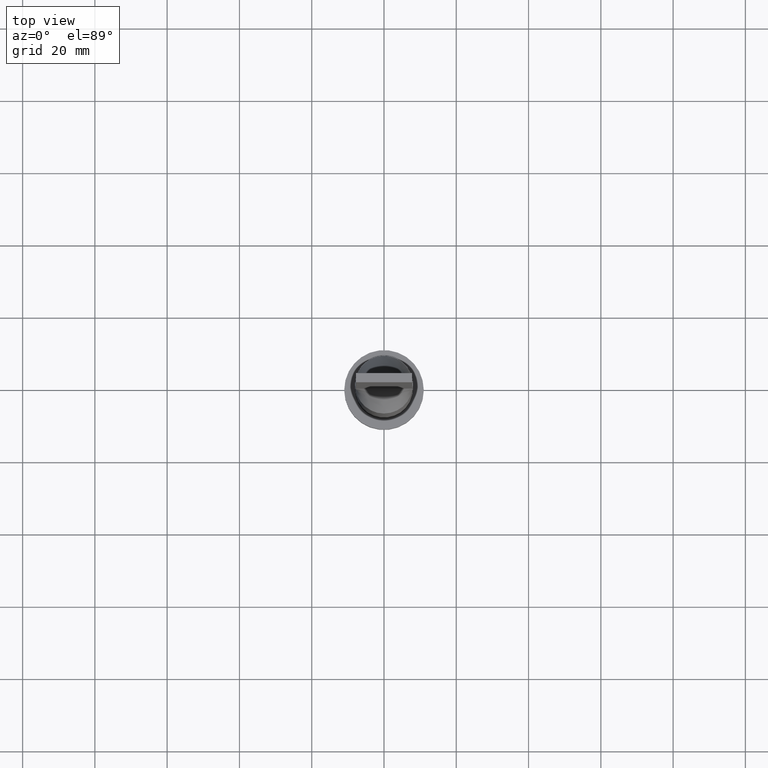
[diagram: clean part render]
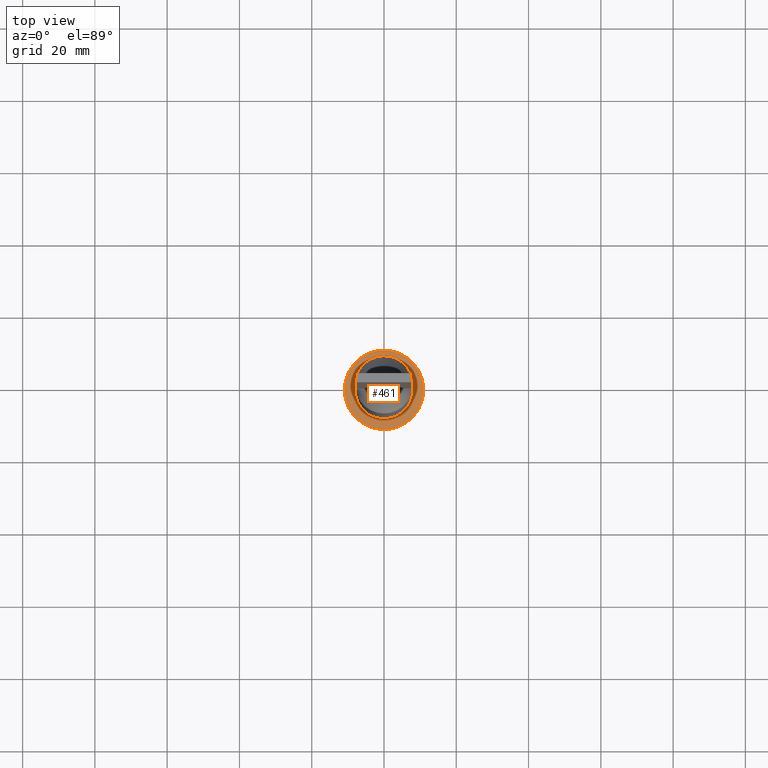
[diagram: same view with one face highlighted and labeled with its STEP entity id]
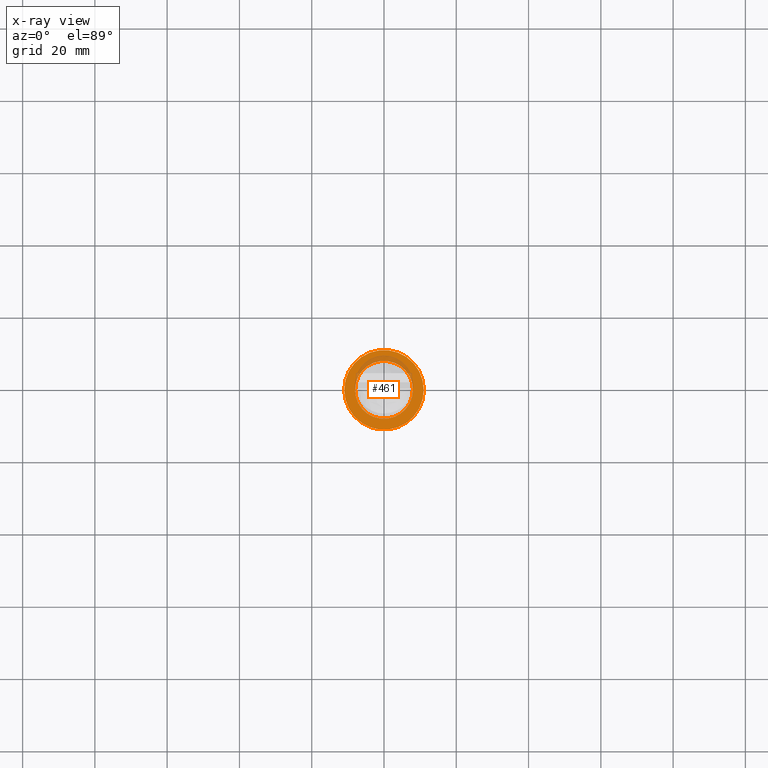
[diagram: x-ray of the same camera — body ghosted, the highlighted face saturated]
A machine part, top view. The second image highlights one B-rep face of the part: STEP entity #461.
The next image is the same camera in x-ray: the body ghosted, the highlighted face saturated — about 14% of this face is hidden behind the body in this view.
In plain terms, the highlighted planar face has unit normal (0, 0, 1).
Its self-contained STEP definition (entity closure, byte-faithful):
#9 = VERTEX_POINT ( 'NONE', #170 ) ;
#50 = EDGE_LOOP ( 'NONE', ( #91, #53 ) ) ;
#51 = EDGE_CURVE ( 'NONE', #195, #9, #570, .T. ) ;
#53 = ORIENTED_EDGE ( 'NONE', *, *, #301, .T. ) ;
#64 = DIRECTION ( 'NONE',  ( 0.000000000000000000, 0.000000000000000000, 1.000000000000000000 ) ) ;
#78 = AXIS2_PLACEMENT_3D ( 'NONE', #479, #581, #489 ) ;
#79 = DIRECTION ( 'NONE',  ( 0.000000000000000000, 0.000000000000000000, 1.000000000000000000 ) ) ;
#91 = ORIENTED_EDGE ( 'NONE', *, *, #394, .T. ) ;
#101 = AXIS2_PLACEMENT_3D ( 'NONE', #612, #526, #171 ) ;
#136 = CARTESIAN_POINT ( 'NONE',  ( -11.00000000000000000, 0.000000000000000000, 7.000000000000000000 ) ) ;
#153 = AXIS2_PLACEMENT_3D ( 'NONE', #321, #64, #270 ) ;
#162 = EDGE_CURVE ( 'NONE', #9, #195, #525, .T. ) ;
#170 = CARTESIAN_POINT ( 'NONE',  ( 8.000000000000000000, 9.797174393178825657E-16, 7.000000000000000000 ) ) ;
#171 = DIRECTION ( 'NONE',  ( 1.000000000000000000, 0.000000000000000000, 0.000000000000000000 ) ) ;
#180 = CARTESIAN_POINT ( 'NONE',  ( 0.000000000000000000, 0.000000000000000000, 7.000000000000000000 ) ) ;
#182 = ORIENTED_EDGE ( 'NONE', *, *, #162, .F. ) ;
#195 = VERTEX_POINT ( 'NONE', #339 ) ;
#201 = VERTEX_POINT ( 'NONE', #533 ) ;
#223 = PLANE ( 'NONE',  #441 ) ;
#270 = DIRECTION ( 'NONE',  ( 1.000000000000000000, 0.000000000000000000, 0.000000000000000000 ) ) ;
#301 = EDGE_CURVE ( 'NONE', #201, #524, #500, .T. ) ;
#321 = CARTESIAN_POINT ( 'NONE',  ( 0.000000000000000000, 0.000000000000000000, 7.000000000000000000 ) ) ;
#325 = DIRECTION ( 'NONE',  ( 1.000000000000000000, 0.000000000000000000, 0.000000000000000000 ) ) ;
#338 = FACE_BOUND ( 'NONE', #407, .T. ) ;
#339 = CARTESIAN_POINT ( 'NONE',  ( -8.000000000000000000, 0.000000000000000000, 7.000000000000000000 ) ) ;
#381 = FACE_OUTER_BOUND ( 'NONE', #50, .T. ) ;
#382 = ORIENTED_EDGE ( 'NONE', *, *, #51, .F. ) ;
#394 = EDGE_CURVE ( 'NONE', #524, #201, #629, .T. ) ;
#407 = EDGE_LOOP ( 'NONE', ( #382, #182 ) ) ;
#423 = CARTESIAN_POINT ( 'NONE',  ( 0.000000000000000000, 0.000000000000000000, 7.000000000000000000 ) ) ;
#441 = AXIS2_PLACEMENT_3D ( 'NONE', #423, #614, #567 ) ;
#461 = ADVANCED_FACE ( 'NONE', ( #338, #381 ), #223, .T. ) ;
#479 = CARTESIAN_POINT ( 'NONE',  ( 0.000000000000000000, 0.000000000000000000, 7.000000000000000000 ) ) ;
#489 = DIRECTION ( 'NONE',  ( 1.000000000000000000, 0.000000000000000000, 0.000000000000000000 ) ) ;
#500 = CIRCLE ( 'NONE', #101, 11.00000000000000000 ) ;
#524 = VERTEX_POINT ( 'NONE', #136 ) ;
#525 = CIRCLE ( 'NONE', #153, 8.000000000000000000 ) ;
#526 = DIRECTION ( 'NONE',  ( 0.000000000000000000, 0.000000000000000000, 1.000000000000000000 ) ) ;
#533 = CARTESIAN_POINT ( 'NONE',  ( 11.00000000000000000, 1.347111479062088405E-15, 7.000000000000000000 ) ) ;
#567 = DIRECTION ( 'NONE',  ( 1.000000000000000000, 0.000000000000000000, -0.000000000000000000 ) ) ;
#570 = CIRCLE ( 'NONE', #78, 8.000000000000000000 ) ;
#581 = DIRECTION ( 'NONE',  ( 0.000000000000000000, 0.000000000000000000, 1.000000000000000000 ) ) ;
#598 = AXIS2_PLACEMENT_3D ( 'NONE', #180, #79, #325 ) ;
#612 = CARTESIAN_POINT ( 'NONE',  ( 0.000000000000000000, 0.000000000000000000, 7.000000000000000000 ) ) ;
#614 = DIRECTION ( 'NONE',  ( 0.000000000000000000, 0.000000000000000000, 1.000000000000000000 ) ) ;
#629 = CIRCLE ( 'NONE', #598, 11.00000000000000000 ) ;